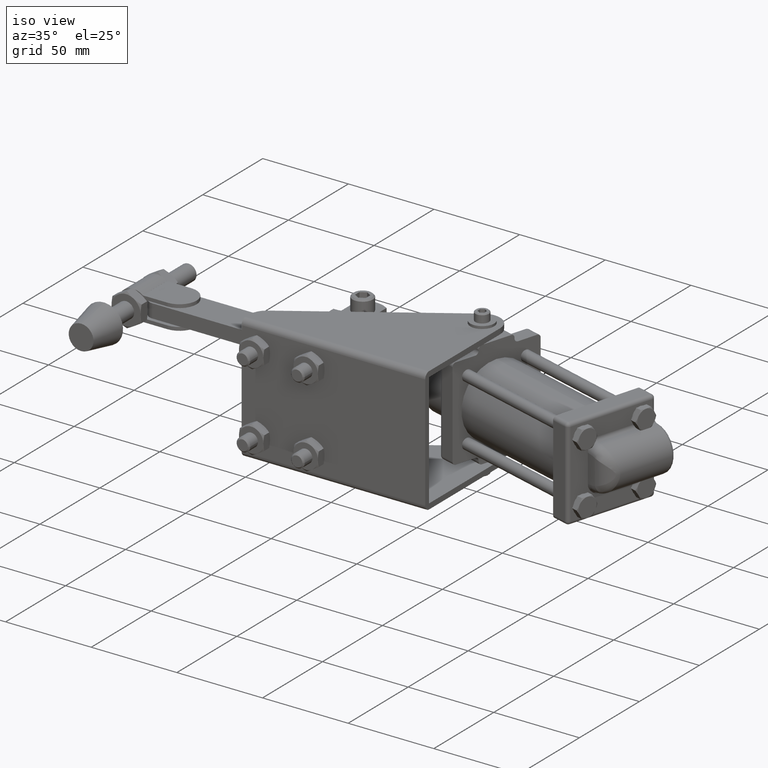
[diagram: clean part render]
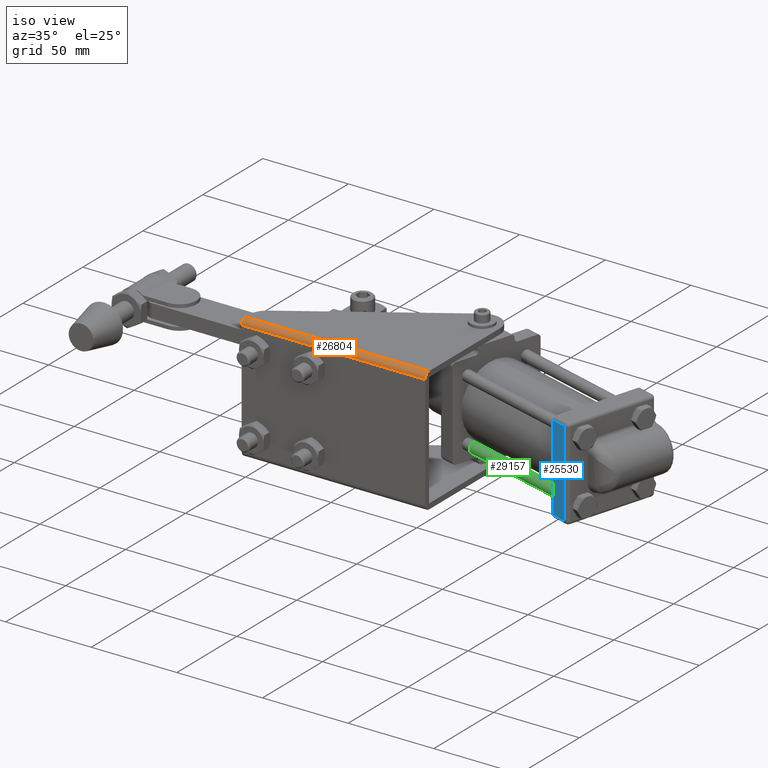
[diagram: same view with three faces highlighted in distinct colors, each labeled with its STEP entity id]
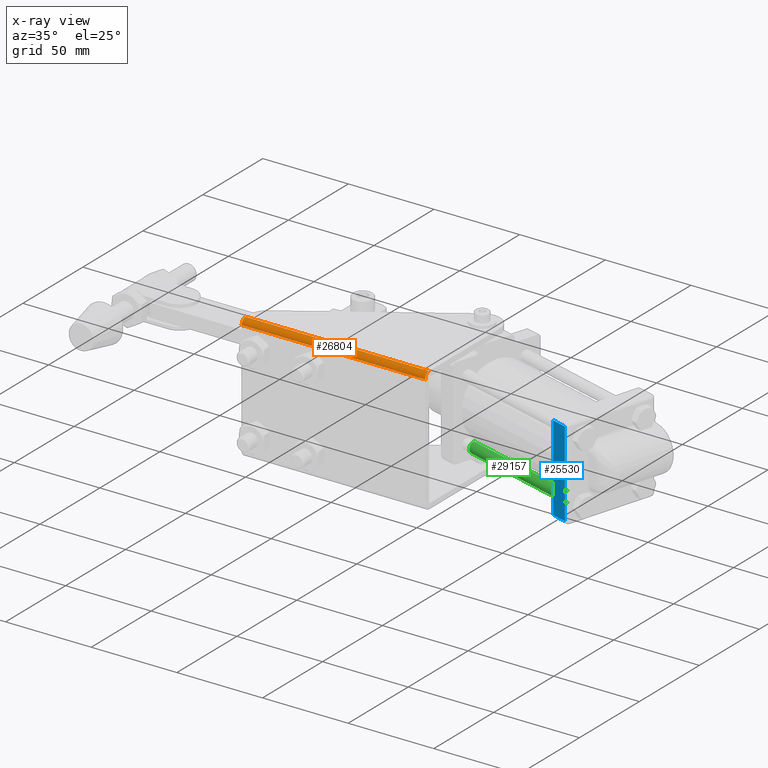
[diagram: x-ray of the same camera — body ghosted, the three highlighted faces saturated]
A machine part, iso view with three faces highlighted in distinct colors.
The next image is the same camera in x-ray (body ghosted, the three faces saturated) — at least one of them is partly hidden behind the body in this view.
Their STEP definitions:

[orange] entity #26804 — the highlighted cylindrical surface (edge-blend (fillet) strip) has radius 3.21 mm, axis along (-1, -0, -0).
#628 = EDGE_CURVE ( 'NONE', #8432, #12157, #24247, .T. ) ;
#2835 = LINE ( 'NONE', #19645, #15399 ) ;
#2916 = ORIENTED_EDGE ( 'NONE', *, *, #4062, .T. ) ;
#4062 = EDGE_CURVE ( 'NONE', #18325, #8432, #2835, .T. ) ;
#4303 = CARTESIAN_POINT ( 'NONE',  ( -50.00000000000002800, 0.009999999999996123100, 33.28999999999998500 ) ) ;
#6811 = DIRECTION ( 'NONE',  ( 0.0000000000000000000, 0.0000000000000000000, 1.000000000000000000 ) ) ;
#7027 = DIRECTION ( 'NONE',  ( -1.000000000000000000, -0.0000000000000000000, -0.0000000000000000000 ) ) ;
#7409 = CARTESIAN_POINT ( 'NONE',  ( 57.19999999999997400, 0.009999999999997857800, 36.49999999999998600 ) ) ;
#7854 = AXIS2_PLACEMENT_3D ( 'NONE', #10341, #22820, #7915 ) ;
#7915 = DIRECTION ( 'NONE',  ( 0.0000000000000000000, 0.0000000000000000000, 1.000000000000000000 ) ) ;
#8432 = VERTEX_POINT ( 'NONE', #18587 ) ;
#8528 = EDGE_LOOP ( 'NONE', ( #26910, #8634, #22549, #2916 ) ) ;
#8634 = ORIENTED_EDGE ( 'NONE', *, *, #15197, .F. ) ;
#10341 = CARTESIAN_POINT ( 'NONE',  ( 57.19999999999997400, 0.009999999999996123100, 33.28999999999998500 ) ) ;
#11865 = CIRCLE ( 'NONE', #26295, 3.209999999999997700 ) ;
#12157 = VERTEX_POINT ( 'NONE', #23683 ) ;
#13964 = CARTESIAN_POINT ( 'NONE',  ( 57.19999999999997400, 0.009999999999996123100, 33.28999999999998500 ) ) ;
#14696 = DIRECTION ( 'NONE',  ( -1.000000000000000000, -0.0000000000000000000, -0.0000000000000000000 ) ) ;
#15197 = EDGE_CURVE ( 'NONE', #15329, #12157, #29684, .T. ) ;
#15329 = VERTEX_POINT ( 'NONE', #17656 ) ;
#15399 = VECTOR ( 'NONE', #14696, 1000.000000000000000 ) ;
#16271 = VECTOR ( 'NONE', #7027, 1000.000000000000000 ) ;
#16491 = DIRECTION ( 'NONE',  ( 0.0000000000000000000, 0.0000000000000000000, 1.000000000000000000 ) ) ;
#17656 = CARTESIAN_POINT ( 'NONE',  ( 57.19999999999997400, -3.200000000000006400, 33.28999999999998500 ) ) ;
#18301 = CYLINDRICAL_SURFACE ( 'NONE', #7854, 3.209999999999997700 ) ;
#18325 = VERTEX_POINT ( 'NONE', #7409 ) ;
#18587 = CARTESIAN_POINT ( 'NONE',  ( -50.00000000000002800, 0.009999999999997857800, 36.49999999999998600 ) ) ;
#19645 = CARTESIAN_POINT ( 'NONE',  ( 57.19999999999997400, 0.009999999999997857800, 36.49999999999998600 ) ) ;
#21820 = DIRECTION ( 'NONE',  ( 1.000000000000000000, -0.0000000000000000000, -0.0000000000000000000 ) ) ;
#22045 = CARTESIAN_POINT ( 'NONE',  ( 57.19999999999997400, -3.200000000000006400, 33.28999999999998500 ) ) ;
#22247 = FACE_OUTER_BOUND ( 'NONE', #8528, .T. ) ;
#22549 = ORIENTED_EDGE ( 'NONE', *, *, #24745, .F. ) ;
#22820 = DIRECTION ( 'NONE',  ( -1.000000000000000000, -0.0000000000000000000, -0.0000000000000000000 ) ) ;
#23683 = CARTESIAN_POINT ( 'NONE',  ( -50.00000000000002800, -3.200000000000006400, 33.28999999999998500 ) ) ;
#24247 = CIRCLE ( 'NONE', #31460, 3.209999999999997700 ) ;
#24745 = EDGE_CURVE ( 'NONE', #18325, #15329, #11865, .T. ) ;
#26295 = AXIS2_PLACEMENT_3D ( 'NONE', #13964, #31591, #16491 ) ;
#26804 = ADVANCED_FACE ( 'NONE', ( #22247 ), #18301, .T. ) ;
#26910 = ORIENTED_EDGE ( 'NONE', *, *, #628, .T. ) ;
#29684 = LINE ( 'NONE', #22045, #16271 ) ;
#31460 = AXIS2_PLACEMENT_3D ( 'NONE', #4303, #21820, #6811 ) ;
#31591 = DIRECTION ( 'NONE',  ( 1.000000000000000000, -0.0000000000000000000, -0.0000000000000000000 ) ) ;

[blue] entity #25530 — the highlighted planar face has unit normal (0.281, 0.9597, 0).
#328 = EDGE_CURVE ( 'NONE', #15002, #20006, #29017, .T. ) ;
#2302 = AXIS2_PLACEMENT_3D ( 'NONE', #28016, #20489, #5478 ) ;
#2447 = LINE ( 'NONE', #19817, #15008 ) ;
#5478 = DIRECTION ( 'NONE',  ( 3.715260361465614200E-017, -5.848277689145053900E-016, 1.000000000000000000 ) ) ;
#6040 = EDGE_CURVE ( 'NONE', #20006, #21182, #16258, .T. ) ;
#7577 = ORIENTED_EDGE ( 'NONE', *, *, #27870, .T. ) ;
#9644 = EDGE_CURVE ( 'NONE', #21182, #25631, #2447, .T. ) ;
#9850 = DIRECTION ( 'NONE',  ( -0.9596985987848241100, 0.2810313140745087600, 2.000102180355001100E-016 ) ) ;
#10163 = DIRECTION ( 'NONE',  ( 0.9596985987848241100, -0.2810313140745087600, -2.000102180355001100E-016 ) ) ;
#13487 = VECTOR ( 'NONE', #13859, 1000.000000000000000 ) ;
#13604 = CARTESIAN_POINT ( 'NONE',  ( 132.2029186021162000, 6.128100367582385700, 27.00000000000000000 ) ) ;
#13859 = DIRECTION ( 'NONE',  ( -3.715260361465615400E-017, 5.848277689145052900E-016, -1.000000000000000000 ) ) ;
#14338 = ORIENTED_EDGE ( 'NONE', *, *, #9644, .T. ) ;
#15002 = VERTEX_POINT ( 'NONE', #28724 ) ;
#15008 = VECTOR ( 'NONE', #9850, 1000.000000000000000 ) ;
#16258 = LINE ( 'NONE', #13604, #29672 ) ;
#16812 = ORIENTED_EDGE ( 'NONE', *, *, #328, .T. ) ;
#17361 = CARTESIAN_POINT ( 'NONE',  ( 132.2029186021162000, 6.128100367582385700, 24.99999999999999600 ) ) ;
#17693 = CARTESIAN_POINT ( 'NONE',  ( 134.1223157996858500, 5.566037739433396000, -25.00000000000003200 ) ) ;
#19817 = CARTESIAN_POINT ( 'NONE',  ( 134.1223157996858500, 5.566037739433368400, 24.99999999999999600 ) ) ;
#20006 = VERTEX_POINT ( 'NONE', #21979 ) ;
#20489 = DIRECTION ( 'NONE',  ( 0.2810313140745087600, 0.9596985987848241100, 5.508173453425895000E-016 ) ) ;
#21182 = VERTEX_POINT ( 'NONE', #17361 ) ;
#21979 = CARTESIAN_POINT ( 'NONE',  ( 132.2029186021162000, 6.128100367582413300, -25.00000000000003200 ) ) ;
#22352 = PLANE ( 'NONE',  #2302 ) ;
#25530 = ADVANCED_FACE ( 'NONE', ( #27117 ), #22352, .F. ) ;
#25631 = VERTEX_POINT ( 'NONE', #30778 ) ;
#26230 = ORIENTED_EDGE ( 'NONE', *, *, #6040, .T. ) ;
#26881 = LINE ( 'NONE', #28944, #13487 ) ;
#27117 = FACE_OUTER_BOUND ( 'NONE', #30526, .T. ) ;
#27870 = EDGE_CURVE ( 'NONE', #25631, #15002, #26881, .T. ) ;
#28016 = CARTESIAN_POINT ( 'NONE',  ( 134.1223157996858500, 5.566037739433368400, 27.00000000000000000 ) ) ;
#28228 = VECTOR ( 'NONE', #10163, 1000.000000000000000 ) ;
#28724 = CARTESIAN_POINT ( 'NONE',  ( 123.5656312130527800, 8.657382194252994300, -25.00000000000003200 ) ) ;
#28944 = CARTESIAN_POINT ( 'NONE',  ( 123.5656312130527800, 8.657382194252965800, 27.00000000000000000 ) ) ;
#29017 = LINE ( 'NONE', #17693, #28228 ) ;
#29672 = VECTOR ( 'NONE', #31228, 1000.000000000000000 ) ;
#30526 = EDGE_LOOP ( 'NONE', ( #7577, #16812, #26230, #14338 ) ) ;
#30778 = CARTESIAN_POINT ( 'NONE',  ( 123.5656312130527800, 8.657382194252965800, 24.99999999999999600 ) ) ;
#31228 = DIRECTION ( 'NONE',  ( 3.715260361465614200E-017, -5.848277689145053900E-016, 1.000000000000000000 ) ) ;

[green] entity #29157 — the highlighted cylindrical surface (edge-blend (fillet) strip) has radius 3.175 mm, axis along (0.9597, -0.281, -0).
#205 = VECTOR ( 'NONE', #705, 1000.000000000000000 ) ;
#482 = VECTOR ( 'NONE', #4564, 1000.000000000000000 ) ;
#705 = DIRECTION ( 'NONE',  ( 0.9596985987848242200, -0.2810313140745086500, -2.000102180354880100E-016 ) ) ;
#1013 = LINE ( 'NONE', #23164, #205 ) ;
#1364 = AXIS2_PLACEMENT_3D ( 'NONE', #23584, #8550, #26129 ) ;
#3104 = EDGE_CURVE ( 'NONE', #27913, #27343, #1013, .T. ) ;
#3333 = AXIS2_PLACEMENT_3D ( 'NONE', #24872, #9837, #27425 ) ;
#3623 = CARTESIAN_POINT ( 'NONE',  ( 126.0949130397235400, 17.29466958331707400, -14.82500000000002200 ) ) ;
#4564 = DIRECTION ( 'NONE',  ( 0.9596985987848242200, -0.2810313140745086500, -2.000102180354880100E-016 ) ) ;
#4839 = DIRECTION ( 'NONE',  ( 6.119339505807955300E-014, 2.190942090918741000E-013, 1.000000000000000000 ) ) ;
#4949 = VERTEX_POINT ( 'NONE', #5769 ) ;
#5695 = CIRCLE ( 'NONE', #3333, 3.174999999999997200 ) ;
#5769 = CARTESIAN_POINT ( 'NONE',  ( 57.50252146093149000, 37.38077783158308200, -14.82500000000000800 ) ) ;
#7063 = EDGE_LOOP ( 'NONE', ( #19477, #13248, #10018, #31148 ) ) ;
#7835 = CIRCLE ( 'NONE', #1364, 3.174999999999994900 ) ;
#8550 = DIRECTION ( 'NONE',  ( -0.9596985987848241100, 0.2810313140745087600, 2.000102180355001100E-016 ) ) ;
#9837 = DIRECTION ( 'NONE',  ( -0.9596985987848242200, 0.2810313140745086500, 2.000102180354880100E-016 ) ) ;
#9987 = CYLINDRICAL_SURFACE ( 'NONE', #13186, 3.174999999999997200 ) ;
#10018 = ORIENTED_EDGE ( 'NONE', *, *, #16797, .T. ) ;
#11482 = CARTESIAN_POINT ( 'NONE',  ( 126.0949130397231400, 17.29466958331568400, -21.17500000000001800 ) ) ;
#13118 = FACE_OUTER_BOUND ( 'NONE', #7063, .T. ) ;
#13186 = AXIS2_PLACEMENT_3D ( 'NONE', #27363, #19751, #4839 ) ;
#13248 = ORIENTED_EDGE ( 'NONE', *, *, #3104, .T. ) ;
#16797 = EDGE_CURVE ( 'NONE', #27343, #29509, #7835, .T. ) ;
#17032 = EDGE_CURVE ( 'NONE', #4949, #29509, #27189, .T. ) ;
#19477 = ORIENTED_EDGE ( 'NONE', *, *, #24306, .F. ) ;
#19751 = DIRECTION ( 'NONE',  ( 0.9596985987848242200, -0.2810313140745086500, -2.000102180354880100E-016 ) ) ;
#21403 = CARTESIAN_POINT ( 'NONE',  ( 57.50252146093108500, 37.38077783158169600, -21.17500000000000400 ) ) ;
#22105 = CARTESIAN_POINT ( 'NONE',  ( 140.6249417650454900, 13.03979928196620900, -14.82500000000002600 ) ) ;
#23164 = CARTESIAN_POINT ( 'NONE',  ( 140.6249417650451200, 13.03979928196481800, -21.17500000000001800 ) ) ;
#23584 = CARTESIAN_POINT ( 'NONE',  ( 126.0949130397233400, 17.29466958331637700, -18.00000000000001800 ) ) ;
#24306 = EDGE_CURVE ( 'NONE', #27913, #4949, #5695, .T. ) ;
#24872 = CARTESIAN_POINT ( 'NONE',  ( 57.50252146093129100, 37.38077783158239200, -18.00000000000000700 ) ) ;
#26129 = DIRECTION ( 'NONE',  ( 0.2810313140745081500, 0.9596985987848242200, -2.185478394931414100E-015 ) ) ;
#27189 = LINE ( 'NONE', #22105, #482 ) ;
#27343 = VERTEX_POINT ( 'NONE', #11482 ) ;
#27363 = CARTESIAN_POINT ( 'NONE',  ( 140.6249417650453200, 13.03979928196551300, -18.00000000000002100 ) ) ;
#27425 = DIRECTION ( 'NONE',  ( -6.337887345301095900E-014, -2.185478394931412400E-013, -1.000000000000000000 ) ) ;
#27913 = VERTEX_POINT ( 'NONE', #21403 ) ;
#29157 = ADVANCED_FACE ( 'NONE', ( #13118 ), #9987, .T. ) ;
#29509 = VERTEX_POINT ( 'NONE', #3623 ) ;
#31148 = ORIENTED_EDGE ( 'NONE', *, *, #17032, .F. ) ;